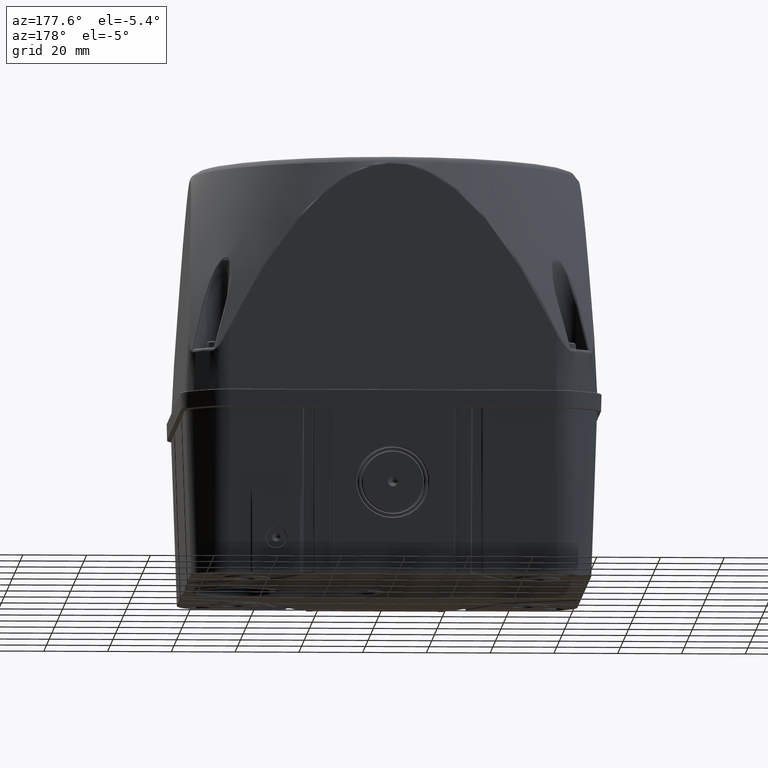
[diagram: clean part render]
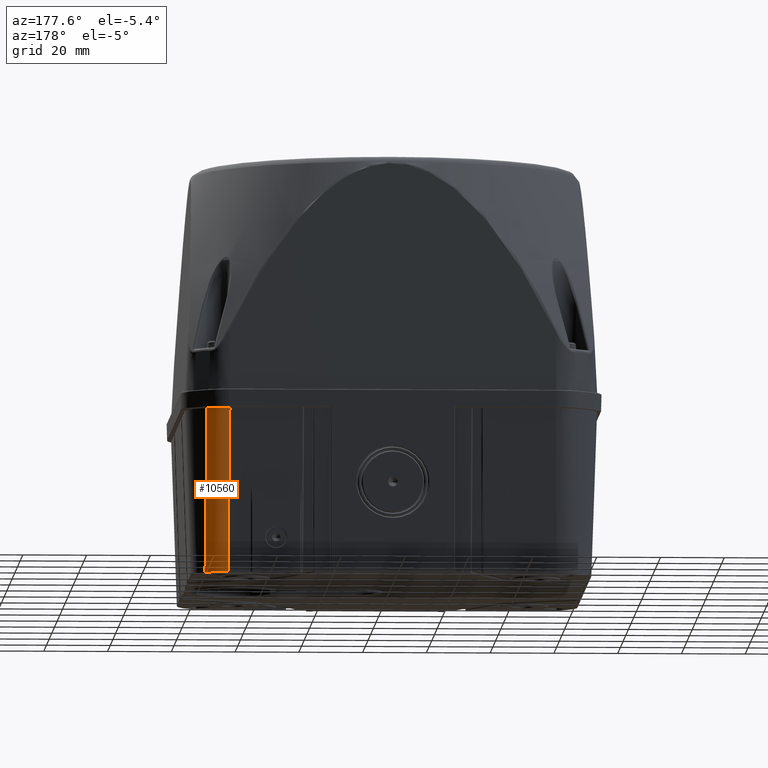
[diagram: same view with one face highlighted and labeled with its STEP entity id]
A machine part, auxiliary view. The second image highlights one B-rep face of the part: STEP entity #10560.
In plain terms, the highlighted cylindrical surface (edge-blend (fillet) strip) has radius 10 mm, axis along (-0.0102, 0.0349, 0.9993).
Its self-contained STEP definition (entity closure, byte-faithful):
#297=ELLIPSE('',#37666,10.0062922379804,10.);
#298=ELLIPSE('',#37667,10.006953913367,10.);
#2689=LINE('',#57838,#4855);
#3116=LINE('',#60905,#5282);
#4855=VECTOR('',#42847,1.);
#5282=VECTOR('',#43988,1.);
#6757=CYLINDRICAL_SURFACE('',#37668,10.);
#7742=FACE_OUTER_BOUND('',#13721,.T.);
#10560=ADVANCED_FACE('',(#7742),#6757,.T.);
#13721=EDGE_LOOP('',(#18321,#18322,#18323,#18324));
#18321=ORIENTED_EDGE('',*,*,#31529,.F.);
#18322=ORIENTED_EDGE('',*,*,#31543,.T.);
#18323=ORIENTED_EDGE('',*,*,#30744,.F.);
#18324=ORIENTED_EDGE('',*,*,#31544,.T.);
#27309=VERTEX_POINT('',#57837);
#27310=VERTEX_POINT('',#57839);
#28023=VERTEX_POINT('',#60904);
#28024=VERTEX_POINT('',#60906);
#30744=EDGE_CURVE('',#27309,#27310,#2689,.T.);
#31529=EDGE_CURVE('',#28023,#28024,#3116,.T.);
#31543=EDGE_CURVE('',#28023,#27310,#297,.T.);
#31544=EDGE_CURVE('',#27309,#28024,#298,.T.);
#37666=AXIS2_PLACEMENT_3D('',#60930,#44022,#44023);
#37667=AXIS2_PLACEMENT_3D('',#60931,#44024,#44025);
#37668=AXIS2_PLACEMENT_3D('',#60932,#44026,#44027);
#42847=DIRECTION('',(0.0102288095446942,-0.0348976709129669,-0.999338543247557));
#43988=DIRECTION('',(-0.0102288095446942,0.0348976709129669,0.999338543247557));
#44022=DIRECTION('',(-0.000255559434539365,0.000871893156900624,0.999999587245764));
#44023=DIRECTION('',(-0.281274924471512,0.959626797955978,-0.000908574873982445));
#44024=DIRECTION('',(-0.000255542536551264,0.000871835505966245,-0.999999587300346));
#44025=DIRECTION('',(-0.281274924486864,0.959626798008357,0.000908514797595765));
#44026=DIRECTION('',(-0.0102288095446942,0.0348976709129669,0.999338543247557));
#44027=DIRECTION('',(0.,-0.999390827019096,0.034899496702501));
#57837=CARTESIAN_POINT('',(51.0635638631254,65.1423667920295,-3.29126880748622));
#57838=CARTESIAN_POINT('',(50.9546940443884,65.5137983931399,7.34514059918962));
#57839=CARTESIAN_POINT('',(51.5908748382348,63.3433378045646,-54.8087185558375));
#60904=CARTESIAN_POINT('',(58.6626068578222,60.4134800466418,-54.8043567832712));
#60905=CARTESIAN_POINT('',(58.0337801312409,62.5588507341716,6.63102161057592));
#60906=CARTESIAN_POINT('',(58.1353851732564,62.2122044011979,-3.29563058005253));
#60930=CARTESIAN_POINT('',(51.5943576999707,53.3375470408964,-54.7999936816618));
#60931=CARTESIAN_POINT('',(51.0672253331555,55.1359666697214,-3.29999368166185));
#60932=CARTESIAN_POINT('',(50.9637892772527,55.4888598801833,6.80554567494876));